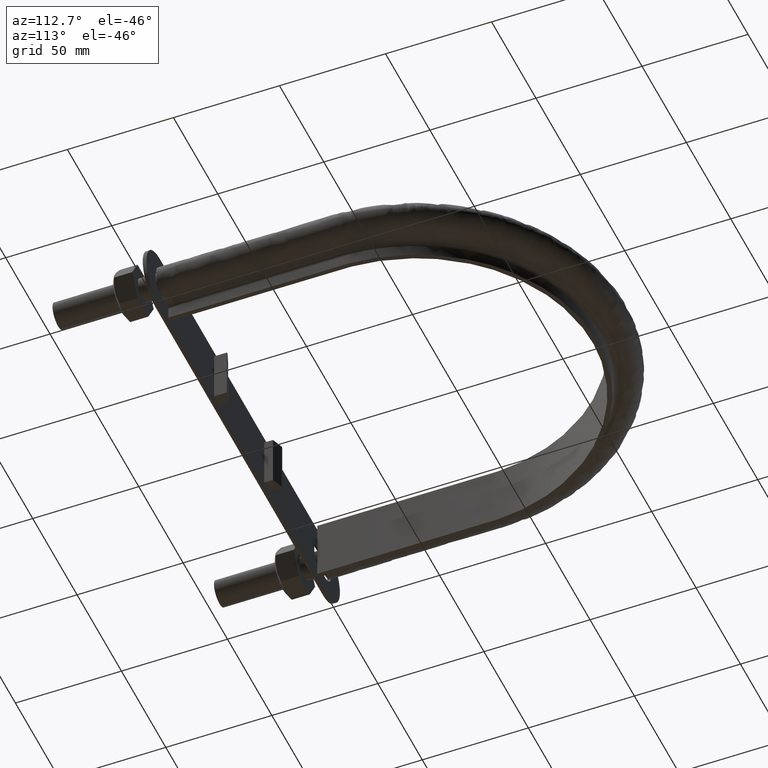
[diagram: clean part render]
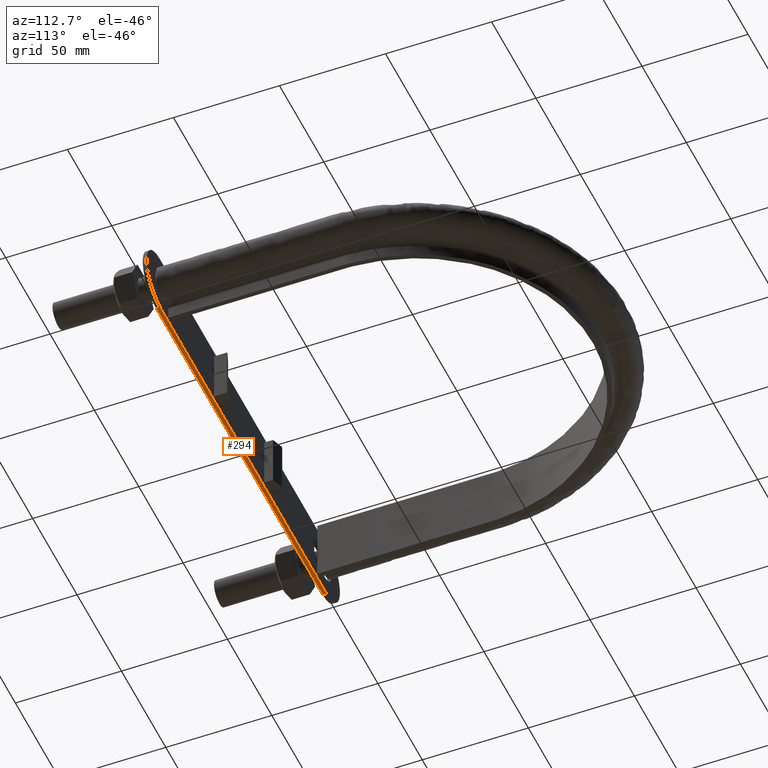
[diagram: same view with one face highlighted and labeled with its STEP entity id]
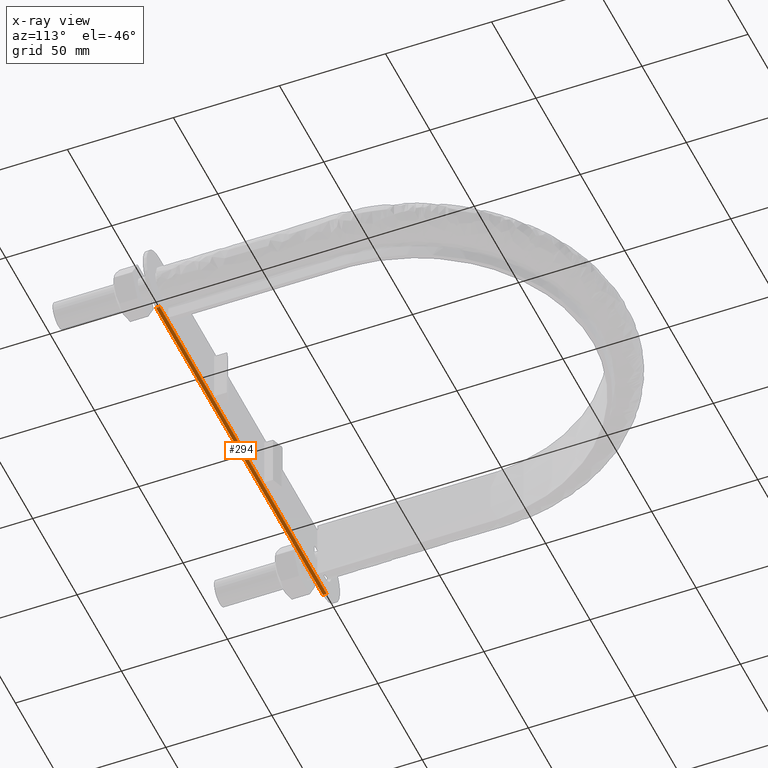
[diagram: x-ray of the same camera — body ghosted, the highlighted face saturated]
A machine part, auxiliary view. The second image highlights one B-rep face of the part: STEP entity #294.
The next image is the same camera in x-ray: the body ghosted, the highlighted face saturated — about 0% of this face is hidden behind the body in this view.
In plain terms, the highlighted planar face has unit normal (-0, 0, -1).
Its self-contained STEP definition (entity closure, byte-faithful):
#294 = ADVANCED_FACE( '', ( #411 ), #412, .T. );
#411 = FACE_OUTER_BOUND( '', #1493, .T. );
#412 = PLANE( '', #1494 );
#1493 = EDGE_LOOP( '', ( #1825, #1826, #1827, #1828 ) );
#1494 = AXIS2_PLACEMENT_3D( '', #1829, #1830, #1831 );
#1825 = ORIENTED_EDGE( '', *, *, #2244, .F. );
#1826 = ORIENTED_EDGE( '', *, *, #2241, .F. );
#1827 = ORIENTED_EDGE( '', *, *, #2204, .T. );
#1828 = ORIENTED_EDGE( '', *, *, #2245, .T. );
#1829 = CARTESIAN_POINT( '', ( 92.4499999998824, 46.8000000000003, -15.0000000007247 ) );
#1830 = DIRECTION( '', ( -7.83837578177664E-012, 5.38325119449561E-017, -1.00000000000000 ) );
#1831 = DIRECTION( '', ( -1.00000000000000, -8.69711136833925E-044, 7.83837578177664E-012 ) );
#2204 = EDGE_CURVE( '', #2402, #2399, #2403, .F. );
#2241 = EDGE_CURVE( '', #2402, #2467, #2468, .T. );
#2244 = EDGE_CURVE( '', #2467, #2472, #2473, .T. );
#2245 = EDGE_CURVE( '', #2399, #2472, #2474, .T. );
#2399 = VERTEX_POINT( '', #2883 );
#2402 = VERTEX_POINT( '', #2886 );
#2403 = LINE( '', #2887, #2888 );
#2467 = VERTEX_POINT( '', #2984 );
#2468 = LINE( '', #2985, #2986 );
#2472 = VERTEX_POINT( '', #2991 );
#2473 = LINE( '', #2992, #2993 );
#2474 = LINE( '', #2994, #2995 );
#2883 = CARTESIAN_POINT( '', ( -95.5500000001176, 46.8000000000003, -14.9999999992510 ) );
#2886 = CARTESIAN_POINT( '', ( 92.4499999998824, 46.8000000000003, -15.0000000007247 ) );
#2887 = CARTESIAN_POINT( '', ( 92.4499999998824, 46.8000000000003, -15.0000000007247 ) );
#2888 = VECTOR( '', #3354, 1000.00000000000 );
#2984 = CARTESIAN_POINT( '', ( 92.4499999998824, 48.6000000000003, -15.0000000007247 ) );
#2985 = CARTESIAN_POINT( '', ( 92.4499999998824, 46.8000000000003, -15.0000000007246 ) );
#2986 = VECTOR( '', #3399, 1000.00000000000 );
#2991 = CARTESIAN_POINT( '', ( -95.5500000001176, 48.6000000000003, -14.9999999992510 ) );
#2992 = CARTESIAN_POINT( '', ( -95.5500000001176, 48.6000000000003, -14.9999999992511 ) );
#2993 = VECTOR( '', #3404, 1000.00000000000 );
#2994 = CARTESIAN_POINT( '', ( -95.5500000001176, 46.8000000000003, -14.9999999992510 ) );
#2995 = VECTOR( '', #3405, 1000.00000000000 );
#3354 = DIRECTION( '', ( 1.00000000000000, 4.21946296651834E-028, -7.83837578177664E-012 ) );
#3399 = DIRECTION( '', ( 2.44484870126044E-016, 1.00000000000000, 5.38325119430397E-017 ) );
#3404 = DIRECTION( '', ( -1.00000000000000, -4.21946296651834E-028, 7.83837578177664E-012 ) );
#3405 = DIRECTION( '', ( 2.44484870126044E-016, 1.00000000000000, 5.38325119430397E-017 ) );